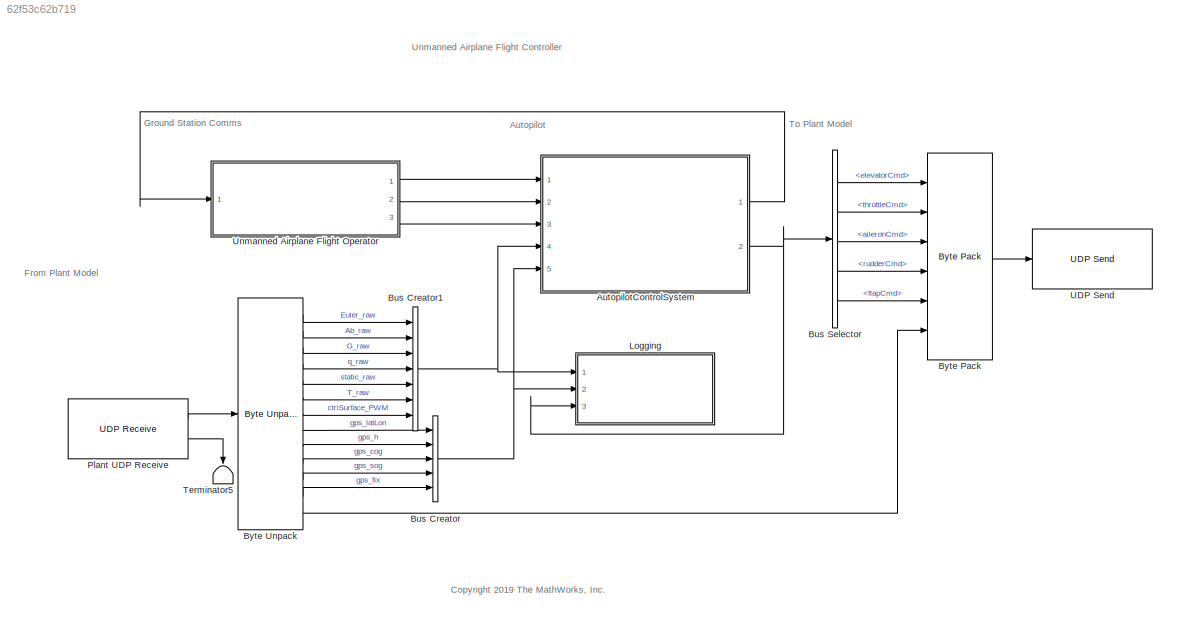
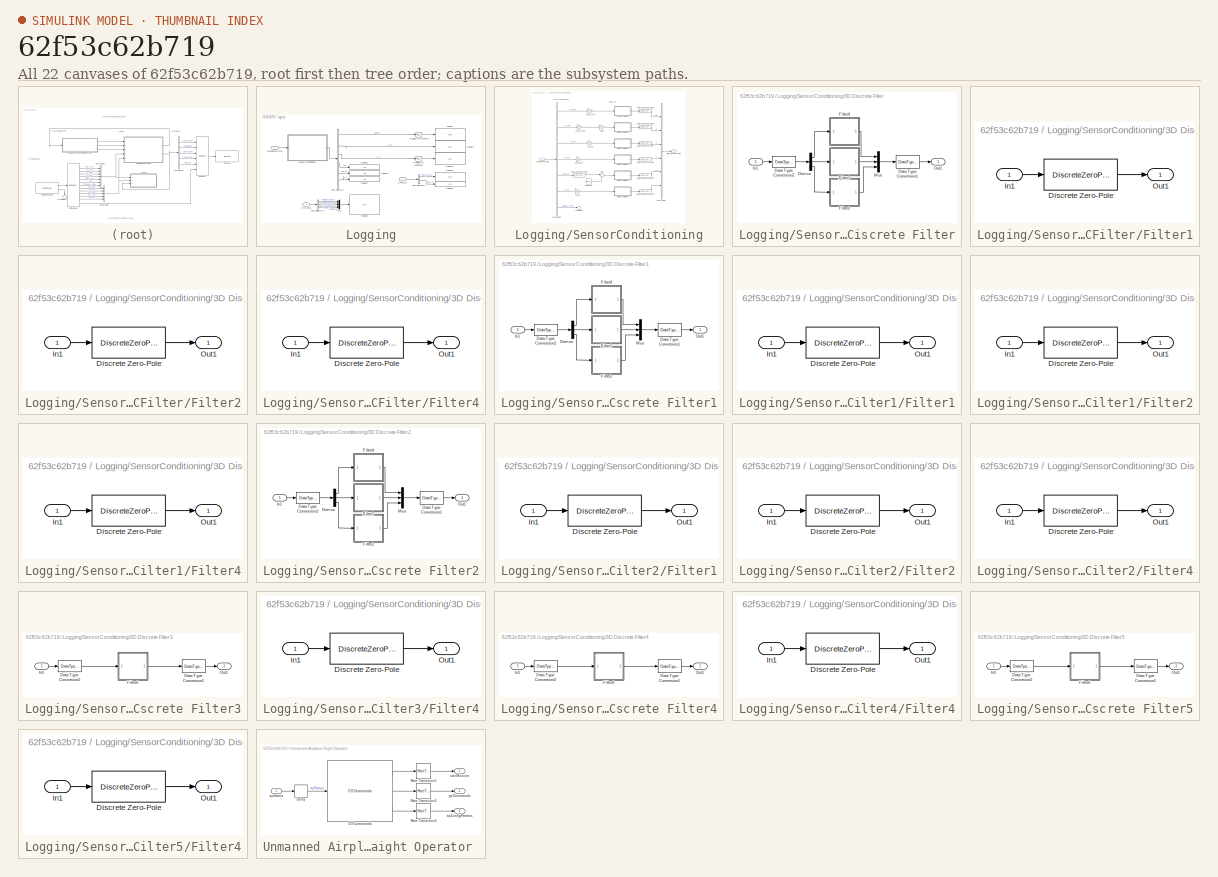
[diagram: thumbnail index - all 22 canvases of the model, root first then tree order]
MODEL slx_62f53c62b719
KIND model
CONFIG AbsTol = auto
CONFIG EnableMultiTasking = on
CONFIG FixedStep = auto
CONFIG MaxStep = auto
CONFIG MinStep = auto
CONFIG RelTol = 1e-3
CONFIG SampleTimeConstraint = Unconstrained
CONFIG Solver = ode5
CONFIG SolverName = ode5
CONFIG StartTime = 0.0
CONFIG StopTime = inf
BLOCK [ModelReference] AutopilotControlSystem
  ModelNameDialog = AutopilotControlSystem
  ModelReferenceVersion = 1.363
  Ports = [5, 2]
BLOCK [BusCreator] Bus Creator
  DisplayOption = bar
  InheritFromInputs = on
  Inputs = 5
  OutDataTypeStr = Bus: gpsReading
  Ports = [5, 1]
BLOCK [BusCreator] Bus Creator1
  DisplayOption = bar
  InheritFromInputs = on
  Inputs = 7
  OutDataTypeStr = Bus: rawSensorDataBus
  Ports = [7, 1]
BLOCK [BusSelector] Bus Selector
  OutputAsBus = off
  OutputSignals = elevatorCmd,throttleCmd,aileronCmd,rudderCmd,flapCmd
  Ports = [1, 5]
BLOCK [Reference] Byte Pack  REF=etargetslib/Byte Pack
  Ports = [6, 1]
  SourceBlock = etargetslib/Byte Pack
  SourceProductBaseCode = ME
  SourceProductName = MATLAB Coder
  SourceType = Byte pack
BLOCK [Reference] Byte Unpack  REF=etargetslib/Byte Unpack
  Ports = [1, 13]
  SourceBlock = etargetslib/Byte Unpack
  SourceProductBaseCode = ME
  SourceProductName = MATLAB Coder
  SourceType = Byte Unpack
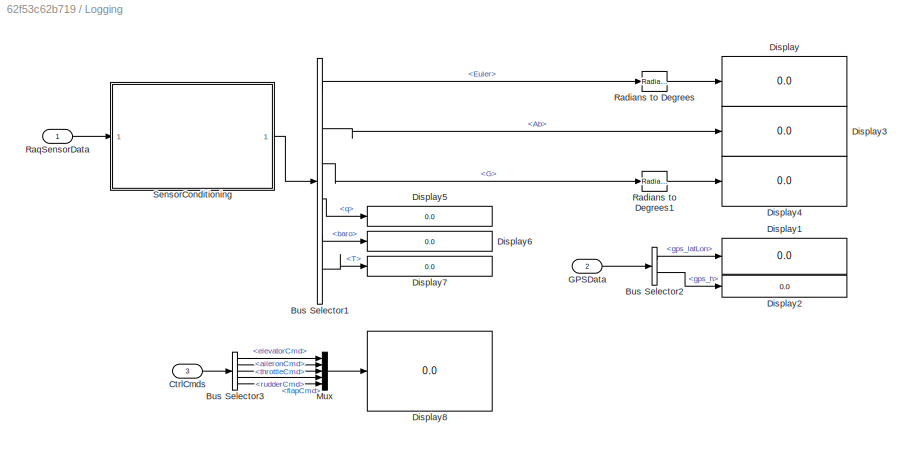
BLOCK [SubSystem] Logging
  Ports = [3]
  RequestExecContextInheritance = off
BLOCK [BusSelector] Logging/Bus Selector1
  OutputAsBus = off
  OutputSignals = Euler,Ab,G,q,baro,T
  Ports = [1, 6]
BLOCK [BusSelector] Logging/Bus Selector2
  OutputAsBus = off
  OutputSignals = gps_latLon,gps_h
  Ports = [1, 2]
BLOCK [BusSelector] Logging/Bus Selector3
  OutputAsBus = off
  OutputSignals = elevatorCmd,throttleCmd,aileronCmd,rudderCmd,flapCmd
  Ports = [1, 5]
BLOCK [Inport] Logging/CtrlCmds
  IconDisplay = Port number
  Port = 3
BLOCK [Display] Logging/Display
  Decimation = 1
  Format = long
  Ports = [1]
BLOCK [Display] Logging/Display1
  Decimation = 1
  Format = long
  Ports = [1]
BLOCK [Display] Logging/Display2
  Decimation = 1
  Format = long
  Ports = [1]
BLOCK [Display] Logging/Display3
  Decimation = 1
  Format = long
  Ports = [1]
BLOCK [Display] Logging/Display4
  Decimation = 1
  Format = long
  Ports = [1]
BLOCK [Display] Logging/Display5
  Decimation = 1
  Format = long
  Ports = [1]
BLOCK [Display] Logging/Display6
  Decimation = 1
  Format = long
  Ports = [1]
BLOCK [Display] Logging/Display7
  Decimation = 1
  Format = long
  Ports = [1]
BLOCK [Display] Logging/Display8
  Decimation = 1
  Format = long
  Ports = [1]
BLOCK [Inport] Logging/GPSData
  IconDisplay = Port number
  Port = 2
BLOCK [Mux] Logging/Mux
  DisplayOption = bar
  Inputs = 5
  Ports = [5, 1]
BLOCK [Reference] Logging/Radians to Degrees  REF=simulink_extras/Transformations/Radians
to Degrees
  Ports = [1, 1]
  SourceBlock = simulink_extras/Transformations/Radians\nto Degrees
  SourceProductBaseCode = SL
  SourceProductName = Simulink
  SourceType = RadiansToDegrees
BLOCK [Reference] Logging/Radians to Degrees1  REF=simulink_extras/Transformations/Radians
to Degrees
  Ports = [1, 1]
  SourceBlock = simulink_extras/Transformations/Radians\nto Degrees
  SourceProductBaseCode = SL
  SourceProductName = Simulink
  SourceType = RadiansToDegrees
BLOCK [Inport] Logging/RaqSensorData
  IconDisplay = Port number
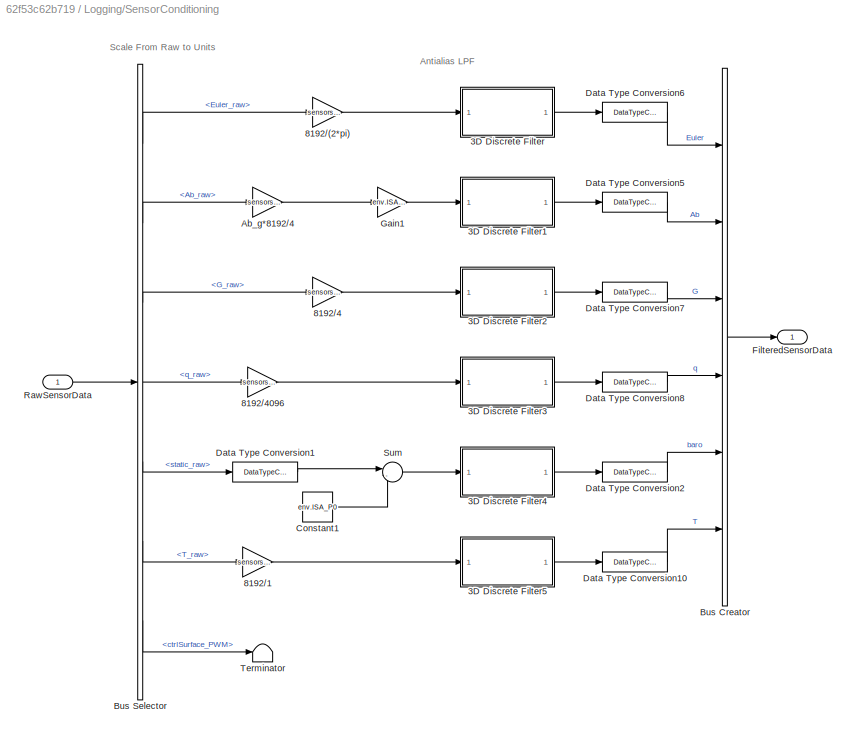
BLOCK [SubSystem] Logging/SensorConditioning
  Ports = [1, 1]
  RequestExecContextInheritance = off
  TreatAsAtomicUnit = on
BLOCK [SubSystem] Logging/SensorConditioning/3D Discrete Filter
  AttributesFormatString = Fc = 40
  Ports = [1, 1]
  RTWFcnName = TustinFilter3D
  RTWFcnNameOpts = User specified
  RTWFileNameOpts = Use function name
  RTWSystemCode = Reusable function
  RequestExecContextInheritance = off
BLOCK [DataTypeConversion] Logging/SensorConditioning/3D Discrete Filter/Data Type Conversion1
  OutDataTypeStr = single
  RndMeth = Floor
  SaturateOnIntegerOverflow = off
BLOCK [DataTypeConversion] Logging/SensorConditioning/3D Discrete Filter/Data Type Conversion2
  OutDataTypeStr = double
  RndMeth = Floor
  SaturateOnIntegerOverflow = off
BLOCK [Demux] Logging/SensorConditioning/3D Discrete Filter/Demux
  DisplayOption = bar
  Outputs = 3
  Ports = [1, 3]
BLOCK [SubSystem] Logging/SensorConditioning/3D Discrete Filter/Filter1
  Ports = [1, 1]
  RequestExecContextInheritance = off
BLOCK [DiscreteZeroPole] Logging/SensorConditioning/3D Discrete Filter/Filter1/Discrete Zero-Pole
  Gain = g_d
  Poles = p_d
  SampleTime = -1
  Zeros = z_d
BLOCK [Inport] Logging/SensorConditioning/3D Discrete Filter/Filter1/In1
  IconDisplay = Port number
BLOCK [Outport] Logging/SensorConditioning/3D Discrete Filter/Filter1/Out1
  IconDisplay = Port number
BLOCK [SubSystem] Logging/SensorConditioning/3D Discrete Filter/Filter2
  Ports = [1, 1]
  RequestExecContextInheritance = off
BLOCK [DiscreteZeroPole] Logging/SensorConditioning/3D Discrete Filter/Filter2/Discrete Zero-Pole
  Gain = g_d
  Poles = p_d
  SampleTime = -1
  Zeros = z_d
BLOCK [Inport] Logging/SensorConditioning/3D Discrete Filter/Filter2/In1
  IconDisplay = Port number
BLOCK [Outport] Logging/SensorConditioning/3D Discrete Filter/Filter2/Out1
  IconDisplay = Port number
BLOCK [SubSystem] Logging/SensorConditioning/3D Discrete Filter/Filter4
  Ports = [1, 1]
  RequestExecContextInheritance = off
BLOCK [DiscreteZeroPole] Logging/SensorConditioning/3D Discrete Filter/Filter4/Discrete Zero-Pole
  Gain = g_d
  Poles = p_d
  SampleTime = -1
  Zeros = z_d
BLOCK [Inport] Logging/SensorConditioning/3D Discrete Filter/Filter4/In1
  IconDisplay = Port number
BLOCK [Outport] Logging/SensorConditioning/3D Discrete Filter/Filter4/Out1
  IconDisplay = Port number
BLOCK [Inport] Logging/SensorConditioning/3D Discrete Filter/In1
  IconDisplay = Port number
BLOCK [Mux] Logging/SensorConditioning/3D Discrete Filter/Mux
  DisplayOption = bar
  Inputs = 3
  Ports = [3, 1]
BLOCK [Outport] Logging/SensorConditioning/3D Discrete Filter/Out1
  IconDisplay = Port number
BLOCK [SubSystem] Logging/SensorConditioning/3D Discrete Filter1
  AttributesFormatString = Fc = 40
  Ports = [1, 1]
  RTWFcnName = TustinFilter3D
  RTWFcnNameOpts = User specified
  RTWFileNameOpts = Use function name
  RTWSystemCode = Reusable function
  RequestExecContextInheritance = off
BLOCK [DataTypeConversion] Logging/SensorConditioning/3D Discrete Filter1/Data Type Conversion1
  OutDataTypeStr = single
  RndMeth = Floor
  SaturateOnIntegerOverflow = off
BLOCK [DataTypeConversion] Logging/SensorConditioning/3D Discrete Filter1/Data Type Conversion2
  OutDataTypeStr = double
  RndMeth = Floor
  SaturateOnIntegerOverflow = off
BLOCK [Demux] Logging/SensorConditioning/3D Discrete Filter1/Demux
  DisplayOption = bar
  Outputs = 3
  Ports = [1, 3]
BLOCK [SubSystem] Logging/SensorConditioning/3D Discrete Filter1/Filter1
  Ports = [1, 1]
  RequestExecContextInheritance = off
BLOCK [DiscreteZeroPole] Logging/SensorConditioning/3D Discrete Filter1/Filter1/Discrete Zero-Pole
  Gain = g_d
  Poles = p_d
  SampleTime = -1
  Zeros = z_d
BLOCK [Inport] Logging/SensorConditioning/3D Discrete Filter1/Filter1/In1
  IconDisplay = Port number
BLOCK [Outport] Logging/SensorConditioning/3D Discrete Filter1/Filter1/Out1
  IconDisplay = Port number
BLOCK [SubSystem] Logging/SensorConditioning/3D Discrete Filter1/Filter2
  Ports = [1, 1]
  RequestExecContextInheritance = off
BLOCK [DiscreteZeroPole] Logging/SensorConditioning/3D Discrete Filter1/Filter2/Discrete Zero-Pole
  Gain = g_d
  Poles = p_d
  SampleTime = -1
  Zeros = z_d
BLOCK [Inport] Logging/SensorConditioning/3D Discrete Filter1/Filter2/In1
  IconDisplay = Port number
BLOCK [Outport] Logging/SensorConditioning/3D Discrete Filter1/Filter2/Out1
  IconDisplay = Port number
BLOCK [SubSystem] Logging/SensorConditioning/3D Discrete Filter1/Filter4
  Ports = [1, 1]
  RequestExecContextInheritance = off
BLOCK [DiscreteZeroPole] Logging/SensorConditioning/3D Discrete Filter1/Filter4/Discrete Zero-Pole
  Gain = g_d
  Poles = p_d
  SampleTime = -1
  Zeros = z_d
BLOCK [Inport] Logging/SensorConditioning/3D Discrete Filter1/Filter4/In1
  IconDisplay = Port number
BLOCK [Outport] Logging/SensorConditioning/3D Discrete Filter1/Filter4/Out1
  IconDisplay = Port number
BLOCK [Inport] Logging/SensorConditioning/3D Discrete Filter1/In1
  IconDisplay = Port number
BLOCK [Mux] Logging/SensorConditioning/3D Discrete Filter1/Mux
  DisplayOption = bar
  Inputs = 3
  Ports = [3, 1]
BLOCK [Outport] Logging/SensorConditioning/3D Discrete Filter1/Out1
  IconDisplay = Port number
BLOCK [SubSystem] Logging/SensorConditioning/3D Discrete Filter2
  AttributesFormatString = Fc = 40
  Ports = [1, 1]
  RTWFcnName = TustinFilter3D
  RTWFcnNameOpts = User specified
  RTWFileNameOpts = Use function name
  RTWSystemCode = Reusable function
  RequestExecContextInheritance = off
BLOCK [DataTypeConversion] Logging/SensorConditioning/3D Discrete Filter2/Data Type Conversion1
  OutDataTypeStr = single
  RndMeth = Floor
  SaturateOnIntegerOverflow = off
BLOCK [DataTypeConversion] Logging/SensorConditioning/3D Discrete Filter2/Data Type Conversion2
  OutDataTypeStr = double
  RndMeth = Floor
  SaturateOnIntegerOverflow = off
BLOCK [Demux] Logging/SensorConditioning/3D Discrete Filter2/Demux
  DisplayOption = bar
  Outputs = 3
  Ports = [1, 3]
BLOCK [SubSystem] Logging/SensorConditioning/3D Discrete Filter2/Filter1
  Ports = [1, 1]
  RequestExecContextInheritance = off
BLOCK [DiscreteZeroPole] Logging/SensorConditioning/3D Discrete Filter2/Filter1/Discrete Zero-Pole
  Gain = g_d
  Poles = p_d
  SampleTime = -1
  Zeros = z_d
BLOCK [Inport] Logging/SensorConditioning/3D Discrete Filter2/Filter1/In1
  IconDisplay = Port number
BLOCK [Outport] Logging/SensorConditioning/3D Discrete Filter2/Filter1/Out1
  IconDisplay = Port number
BLOCK [SubSystem] Logging/SensorConditioning/3D Discrete Filter2/Filter2
  Ports = [1, 1]
  RequestExecContextInheritance = off
BLOCK [DiscreteZeroPole] Logging/SensorConditioning/3D Discrete Filter2/Filter2/Discrete Zero-Pole
  Gain = g_d
  Poles = p_d
  SampleTime = -1
  Zeros = z_d
BLOCK [Inport] Logging/SensorConditioning/3D Discrete Filter2/Filter2/In1
  IconDisplay = Port number
BLOCK [Outport] Logging/SensorConditioning/3D Discrete Filter2/Filter2/Out1
  IconDisplay = Port number
BLOCK [SubSystem] Logging/SensorConditioning/3D Discrete Filter2/Filter4
  Ports = [1, 1]
  RequestExecContextInheritance = off
BLOCK [DiscreteZeroPole] Logging/SensorConditioning/3D Discrete Filter2/Filter4/Discrete Zero-Pole
  Gain = g_d
  Poles = p_d
  SampleTime = -1
  Zeros = z_d
BLOCK [Inport] Logging/SensorConditioning/3D Discrete Filter2/Filter4/In1
  IconDisplay = Port number
BLOCK [Outport] Logging/SensorConditioning/3D Discrete Filter2/Filter4/Out1
  IconDisplay = Port number
BLOCK [Inport] Logging/SensorConditioning/3D Discrete Filter2/In1
  IconDisplay = Port number
BLOCK [Mux] Logging/SensorConditioning/3D Discrete Filter2/Mux
  DisplayOption = bar
  Inputs = 3
  Ports = [3, 1]
BLOCK [Outport] Logging/SensorConditioning/3D Discrete Filter2/Out1
  IconDisplay = Port number
BLOCK [SubSystem] Logging/SensorConditioning/3D Discrete Filter3
  AttributesFormatString = Fc = 40
  Ports = [1, 1]
  RTWFcnName = TustinFilter3D
  RTWFcnNameOpts = User specified
  RTWFileNameOpts = Use function name
  RTWSystemCode = Reusable function
  RequestExecContextInheritance = off
BLOCK [DataTypeConversion] Logging/SensorConditioning/3D Discrete Filter3/Data Type Conversion1
  OutDataTypeStr = single
  RndMeth = Floor
  SaturateOnIntegerOverflow = off
BLOCK [DataTypeConversion] Logging/SensorConditioning/3D Discrete Filter3/Data Type Conversion2
  OutDataTypeStr = double
  RndMeth = Floor
  SaturateOnIntegerOverflow = off
BLOCK [SubSystem] Logging/SensorConditioning/3D Discrete Filter3/Filter4
  Ports = [1, 1]
  RequestExecContextInheritance = off
BLOCK [DiscreteZeroPole] Logging/SensorConditioning/3D Discrete Filter3/Filter4/Discrete Zero-Pole
  Gain = g_d
  Poles = p_d
  SampleTime = -1
  Zeros = z_d
BLOCK [Inport] Logging/SensorConditioning/3D Discrete Filter3/Filter4/In1
  IconDisplay = Port number
BLOCK [Outport] Logging/SensorConditioning/3D Discrete Filter3/Filter4/Out1
  IconDisplay = Port number
BLOCK [Inport] Logging/SensorConditioning/3D Discrete Filter3/In1
  IconDisplay = Port number
BLOCK [Outport] Logging/SensorConditioning/3D Discrete Filter3/Out1
  IconDisplay = Port number
BLOCK [SubSystem] Logging/SensorConditioning/3D Discrete Filter4
  AttributesFormatString = Fc = 40
  Ports = [1, 1]
  RTWFcnName = TustinFilter3D
  RTWFcnNameOpts = User specified
  RTWFileNameOpts = Use function name
  RTWSystemCode = Reusable function
  RequestExecContextInheritance = off
BLOCK [DataTypeConversion] Logging/SensorConditioning/3D Discrete Filter4/Data Type Conversion1
  OutDataTypeStr = single
  RndMeth = Floor
  SaturateOnIntegerOverflow = off
BLOCK [DataTypeConversion] Logging/SensorConditioning/3D Discrete Filter4/Data Type Conversion2
  OutDataTypeStr = double
  RndMeth = Floor
  SaturateOnIntegerOverflow = off
BLOCK [SubSystem] Logging/SensorConditioning/3D Discrete Filter4/Filter4
  Ports = [1, 1]
  RequestExecContextInheritance = off
BLOCK [DiscreteZeroPole] Logging/SensorConditioning/3D Discrete Filter4/Filter4/Discrete Zero-Pole
  Gain = g_d
  Poles = p_d
  SampleTime = -1
  Zeros = z_d
BLOCK [Inport] Logging/SensorConditioning/3D Discrete Filter4/Filter4/In1
  IconDisplay = Port number
BLOCK [Outport] Logging/SensorConditioning/3D Discrete Filter4/Filter4/Out1
  IconDisplay = Port number
BLOCK [Inport] Logging/SensorConditioning/3D Discrete Filter4/In1
  IconDisplay = Port number
BLOCK [Outport] Logging/SensorConditioning/3D Discrete Filter4/Out1
  IconDisplay = Port number
BLOCK [SubSystem] Logging/SensorConditioning/3D Discrete Filter5
  AttributesFormatString = Fc = 40
  Ports = [1, 1]
  RTWFcnName = TustinFilter3D
  RTWFcnNameOpts = User specified
  RTWFileNameOpts = Use function name
  RTWSystemCode = Reusable function
  RequestExecContextInheritance = off
BLOCK [DataTypeConversion] Logging/SensorConditioning/3D Discrete Filter5/Data Type Conversion1
  OutDataTypeStr = single
  RndMeth = Floor
  SaturateOnIntegerOverflow = off
BLOCK [DataTypeConversion] Logging/SensorConditioning/3D Discrete Filter5/Data Type Conversion2
  OutDataTypeStr = double
  RndMeth = Floor
  SaturateOnIntegerOverflow = off
BLOCK [SubSystem] Logging/SensorConditioning/3D Discrete Filter5/Filter4
  Ports = [1, 1]
  RequestExecContextInheritance = off
BLOCK [DiscreteZeroPole] Logging/SensorConditioning/3D Discrete Filter5/Filter4/Discrete Zero-Pole
  Gain = g_d
  Poles = p_d
  SampleTime = -1
  Zeros = z_d
BLOCK [Inport] Logging/SensorConditioning/3D Discrete Filter5/Filter4/In1
  IconDisplay = Port number
BLOCK [Outport] Logging/SensorConditioning/3D Discrete Filter5/Filter4/Out1
  IconDisplay = Port number
BLOCK [Inport] Logging/SensorConditioning/3D Discrete Filter5/In1
  IconDisplay = Port number
BLOCK [Outport] Logging/SensorConditioning/3D Discrete Filter5/Out1
  IconDisplay = Port number
BLOCK [Gain] Logging/SensorConditioning/8192//(2*pi)
  AttributesFormatString = %<Gain>
  Gain = sensors.max_euler/sensors.bit_scale
  OutDataTypeStr = single
  ParamDataTypeStr = Inherit: Inherit via internal rule
  SaturateOnIntegerOverflow = off
BLOCK [Gain] Logging/SensorConditioning/8192//1
  AttributesFormatString = %<Gain>
  Gain = sensors.max_temp/sensors.bit_scale
  OutDataTypeStr = single
  ParamDataTypeStr = Inherit: Inherit via internal rule
  SaturateOnIntegerOverflow = off
BLOCK [Gain] Logging/SensorConditioning/8192//4
  AttributesFormatString = %<Gain>
  Gain = sensors.max_gyro/sensors.bit_scale
  OutDataTypeStr = single
  ParamDataTypeStr = Inherit: Inherit via internal rule
  SaturateOnIntegerOverflow = off
BLOCK [Gain] Logging/SensorConditioning/8192//4096
  AttributesFormatString = %<Gain>
  Gain = sensors.max_dyn/sensors.bit_scale
  OutDataTypeStr = single
  ParamDataTypeStr = Inherit: Inherit via internal rule
  SaturateOnIntegerOverflow = off
BLOCK [Gain] Logging/SensorConditioning/Ab_g*8192//4
  AttributesFormatString = %<Gain>
  Gain = sensors.max_accel/sensors.bit_scale
  OutDataTypeStr = single
  ParamDataTypeStr = Inherit: Inherit via internal rule
  SaturateOnIntegerOverflow = off
BLOCK [BusCreator] Logging/SensorConditioning/Bus Creator
  DisplayOption = bar
  InheritFromInputs = on
  Inputs = 6
  Ports = [6, 1]
BLOCK [BusSelector] Logging/SensorConditioning/Bus Selector
  OutputAsBus = off
  OutputSignals = Euler_raw,Ab_raw,G_raw,q_raw,static_raw,T_raw,ctrlSurface_PWM
  Ports = [1, 7]
BLOCK [Constant] Logging/SensorConditioning/Constant1
  AttributesFormatString = %<Value>
  Value = env.ISA_P0
BLOCK [DataTypeConversion] Logging/SensorConditioning/Data Type Conversion1
  OutDataTypeStr = single
  RndMeth = Floor
  SaturateOnIntegerOverflow = off
BLOCK [DataTypeConversion] Logging/SensorConditioning/Data Type Conversion10
  OutDataTypeStr = single
  RndMeth = Floor
  SaturateOnIntegerOverflow = off
BLOCK [DataTypeConversion] Logging/SensorConditioning/Data Type Conversion2
  OutDataTypeStr = single
  RndMeth = Floor
  SaturateOnIntegerOverflow = off
BLOCK [DataTypeConversion] Logging/SensorConditioning/Data Type Conversion5
  OutDataTypeStr = single
  RndMeth = Floor
  SaturateOnIntegerOverflow = off
BLOCK [DataTypeConversion] Logging/SensorConditioning/Data Type Conversion6
  OutDataTypeStr = single
  RndMeth = Floor
  SaturateOnIntegerOverflow = off
BLOCK [DataTypeConversion] Logging/SensorConditioning/Data Type Conversion7
  OutDataTypeStr = single
  RndMeth = Floor
  SaturateOnIntegerOverflow = off
BLOCK [DataTypeConversion] Logging/SensorConditioning/Data Type Conversion8
  OutDataTypeStr = single
  RndMeth = Floor
  SaturateOnIntegerOverflow = off
BLOCK [Outport] Logging/SensorConditioning/FilteredSensorData
  IconDisplay = Port number
BLOCK [Gain] Logging/SensorConditioning/Gain1
  AttributesFormatString = %<Gain>
  Gain = env.ISA_g
  OutDataTypeStr = single
  ParamDataTypeStr = Inherit: Inherit via internal rule
  SaturateOnIntegerOverflow = off
BLOCK [Inport] Logging/SensorConditioning/RawSensorData
  IconDisplay = Port number
BLOCK [Sum] Logging/SensorConditioning/Sum
  IconShape = round
  InputSameDT = off
  Inputs = |-+
  OutDataTypeStr = Inherit: Inherit via internal rule
  Ports = [2, 1]
  SaturateOnIntegerOverflow = off
BLOCK [Terminator] Logging/SensorConditioning/Terminator
BLOCK [Reference] Plant UDP Receive  REF=embdlinuxlib/UDP Receive
  Ports = [0, 2]
  SourceBlock = embdlinuxlib/UDP Receive
  SourceProductBaseCode = SC_BEAGLEBONE_BLUE
  SourceProductName = Simulink Coder Support Package for BeagleBone Blue Hardware
  SourceType = UDP Receive
BLOCK [Terminator] Terminator5
BLOCK [Reference] UDP Send  REF=embdlinuxlib/UDP Send
  Ports = [1]
  SourceBlock = embdlinuxlib/UDP Send
  SourceProductBaseCode = SC_BEAGLEBONE_BLUE
  SourceProductName = Simulink Coder Support Package for BeagleBone Blue Hardware
  SourceType = UDP Send
BLOCK [SubSystem] Unmanned Airplane Flight Operator 
  Ports = [1, 3]
  RequestExecContextInheritance = off
BLOCK [Delay] Unmanned Airplane Flight Operator /Delay
  DelayLength = 1
  InputPortMap = u0
  Ports = [1, 1]
BLOCK [Reference] Unmanned Airplane Flight Operator /GS Commands   REF=mbdriLib/Utilities/GS Commands 
  Ports = [1, 3]
  SourceBlock = mbdriLib/Utilities/GS Commands
  SourceProductBaseCode = RO
  SourceProductName = Robotics System Toolbox
  SourceType = SubSystem
BLOCK [RateTransition] Unmanned Airplane Flight Operator /Rate Transition2
  OutPortSampleTime = ap.apSampleTime
BLOCK [RateTransition] Unmanned Airplane Flight Operator /Rate Transition3
  OutPortSampleTime = ap.apSampleTime
BLOCK [RateTransition] Unmanned Airplane Flight Operator /Rate Transition4
  OutPortSampleTime = ap.apSampleTime
BLOCK [Outport] Unmanned Airplane Flight Operator /apConfigParams
  IconDisplay = Port number
  OutDataTypeStr = Bus: apConfigParamsBus
  Port = 3
BLOCK [Inport] Unmanned Airplane Flight Operator /apStatus
  IconDisplay = Port number
  OutDataTypeStr = Bus: apStatusBus
BLOCK [Outport] Unmanned Airplane Flight Operator /gsCommands
  IconDisplay = Port number
  OutDataTypeStr = Bus: gsCommandsBus
  Port = 2
BLOCK [Outport] Unmanned Airplane Flight Operator /uavMission
  IconDisplay = Port number
  OutDataTypeStr = Bus: waypoint
ANNOTATION (root): Unmanned Airplane Flight Controller
ANNOTATION (root): Autopilot
ANNOTATION (root): <copyright redacted>
ANNOTATION (root): From Plant Model
ANNOTATION (root): Ground Station Comms
ANNOTATION (root): To Plant Model
ANNOTATION Logging/SensorConditioning: Antialias LPF
ANNOTATION Logging/SensorConditioning: Scale From Raw to Units
LINE AutopilotControlSystem:1 -> Unmanned Airplane Flight Operator :1
NET AutopilotControlSystem:2 -> Bus Selector:1, Logging:3
NET Bus Creator1:1 -> AutopilotControlSystem:4, Logging:1
NET Bus Creator:1 -> AutopilotControlSystem:5, Logging:2
LINE Bus Selector:1 -> Byte Pack:1
LINE Bus Selector:2 -> Byte Pack:2
LINE Bus Selector:3 -> Byte Pack:3
LINE Bus Selector:4 -> Byte Pack:4
LINE Bus Selector:5 -> Byte Pack:5
LINE Byte Pack:1 -> UDP Send:1
LINE Byte Unpack:1 -> Bus Creator1:1
LINE Byte Unpack:10 -> Bus Creator:3
LINE Byte Unpack:11 -> Bus Creator:4
LINE Byte Unpack:12 -> Bus Creator:5
LINE Byte Unpack:13 -> Byte Pack:6
LINE Byte Unpack:2 -> Bus Creator1:2
LINE Byte Unpack:3 -> Bus Creator1:3
LINE Byte Unpack:4 -> Bus Creator1:4
LINE Byte Unpack:5 -> Bus Creator1:5
LINE Byte Unpack:6 -> Bus Creator1:6
LINE Byte Unpack:7 -> Bus Creator1:7
LINE Byte Unpack:8 -> Bus Creator:1
LINE Byte Unpack:9 -> Bus Creator:2
LINE Logging/Bus Selector1:1 -> Logging/Radians to Degrees:1
LINE Logging/Bus Selector1:2 -> Logging/Display3:1
LINE Logging/Bus Selector1:3 -> Logging/Radians to Degrees1:1
LINE Logging/Bus Selector1:4 -> Logging/Display5:1
LINE Logging/Bus Selector1:5 -> Logging/Display6:1
LINE Logging/Bus Selector1:6 -> Logging/Display7:1
LINE Logging/Bus Selector2:1 -> Logging/Display1:1
LINE Logging/Bus Selector2:2 -> Logging/Display2:1
LINE Logging/Bus Selector3:1 -> Logging/Mux:1
LINE Logging/Bus Selector3:2 -> Logging/Mux:2
LINE Logging/Bus Selector3:3 -> Logging/Mux:3
LINE Logging/Bus Selector3:4 -> Logging/Mux:4
LINE Logging/Bus Selector3:5 -> Logging/Mux:5
LINE Logging/CtrlCmds:1 -> Logging/Bus Selector3:1
LINE Logging/GPSData:1 -> Logging/Bus Selector2:1
LINE Logging/Mux:1 -> Logging/Display8:1
LINE Logging/Radians to Degrees1:1 -> Logging/Display4:1
LINE Logging/Radians to Degrees:1 -> Logging/Display:1
LINE Logging/RaqSensorData:1 -> Logging/SensorConditioning:1
LINE Logging/SensorConditioning/3D Discrete Filter/Data Type Conversion1:1 -> Logging/SensorConditioning/3D Discrete Filter/Out1:1
LINE Logging/SensorConditioning/3D Discrete Filter/Data Type Conversion2:1 -> Logging/SensorConditioning/3D Discrete Filter/Demux:1
LINE Logging/SensorConditioning/3D Discrete Filter/Demux:1 -> Logging/SensorConditioning/3D Discrete Filter/Filter4:1
LINE Logging/SensorConditioning/3D Discrete Filter/Demux:2 -> Logging/SensorConditioning/3D Discrete Filter/Filter1:1
LINE Logging/SensorConditioning/3D Discrete Filter/Demux:3 -> Logging/SensorConditioning/3D Discrete Filter/Filter2:1
LINE Logging/SensorConditioning/3D Discrete Filter/Filter1:1 -> Logging/SensorConditioning/3D Discrete Filter/Mux:2
LINE Logging/SensorConditioning/3D Discrete Filter/Filter2:1 -> Logging/SensorConditioning/3D Discrete Filter/Mux:3
LINE Logging/SensorConditioning/3D Discrete Filter/Filter4:1 -> Logging/SensorConditioning/3D Discrete Filter/Mux:1
LINE Logging/SensorConditioning/3D Discrete Filter/In1:1 -> Logging/SensorConditioning/3D Discrete Filter/Data Type Conversion2:1
LINE Logging/SensorConditioning/3D Discrete Filter/Mux:1 -> Logging/SensorConditioning/3D Discrete Filter/Data Type Conversion1:1
LINE Logging/SensorConditioning/3D Discrete Filter1/Data Type Conversion1:1 -> Logging/SensorConditioning/3D Discrete Filter1/Out1:1
LINE Logging/SensorConditioning/3D Discrete Filter1/Data Type Conversion2:1 -> Logging/SensorConditioning/3D Discrete Filter1/Demux:1
LINE Logging/SensorConditioning/3D Discrete Filter1/Demux:1 -> Logging/SensorConditioning/3D Discrete Filter1/Filter4:1
LINE Logging/SensorConditioning/3D Discrete Filter1/Demux:2 -> Logging/SensorConditioning/3D Discrete Filter1/Filter1:1
LINE Logging/SensorConditioning/3D Discrete Filter1/Demux:3 -> Logging/SensorConditioning/3D Discrete Filter1/Filter2:1
LINE Logging/SensorConditioning/3D Discrete Filter1/Filter1:1 -> Logging/SensorConditioning/3D Discrete Filter1/Mux:2
LINE Logging/SensorConditioning/3D Discrete Filter1/Filter2:1 -> Logging/SensorConditioning/3D Discrete Filter1/Mux:3
LINE Logging/SensorConditioning/3D Discrete Filter1/Filter4:1 -> Logging/SensorConditioning/3D Discrete Filter1/Mux:1
LINE Logging/SensorConditioning/3D Discrete Filter1/In1:1 -> Logging/SensorConditioning/3D Discrete Filter1/Data Type Conversion2:1
LINE Logging/SensorConditioning/3D Discrete Filter1/Mux:1 -> Logging/SensorConditioning/3D Discrete Filter1/Data Type Conversion1:1
LINE Logging/SensorConditioning/3D Discrete Filter1:1 -> Logging/SensorConditioning/Data Type Conversion5:1
LINE Logging/SensorConditioning/3D Discrete Filter2/Data Type Conversion1:1 -> Logging/SensorConditioning/3D Discrete Filter2/Out1:1
LINE Logging/SensorConditioning/3D Discrete Filter2/Data Type Conversion2:1 -> Logging/SensorConditioning/3D Discrete Filter2/Demux:1
LINE Logging/SensorConditioning/3D Discrete Filter2/Demux:1 -> Logging/SensorConditioning/3D Discrete Filter2/Filter4:1
LINE Logging/SensorConditioning/3D Discrete Filter2/Demux:2 -> Logging/SensorConditioning/3D Discrete Filter2/Filter1:1
LINE Logging/SensorConditioning/3D Discrete Filter2/Demux:3 -> Logging/SensorConditioning/3D Discrete Filter2/Filter2:1
LINE Logging/SensorConditioning/3D Discrete Filter2/Filter1:1 -> Logging/SensorConditioning/3D Discrete Filter2/Mux:2
LINE Logging/SensorConditioning/3D Discrete Filter2/Filter2:1 -> Logging/SensorConditioning/3D Discrete Filter2/Mux:3
LINE Logging/SensorConditioning/3D Discrete Filter2/Filter4:1 -> Logging/SensorConditioning/3D Discrete Filter2/Mux:1
LINE Logging/SensorConditioning/3D Discrete Filter2/In1:1 -> Logging/SensorConditioning/3D Discrete Filter2/Data Type Conversion2:1
LINE Logging/SensorConditioning/3D Discrete Filter2/Mux:1 -> Logging/SensorConditioning/3D Discrete Filter2/Data Type Conversion1:1
LINE Logging/SensorConditioning/3D Discrete Filter2:1 -> Logging/SensorConditioning/Data Type Conversion7:1
LINE Logging/SensorConditioning/3D Discrete Filter3/Data Type Conversion1:1 -> Logging/SensorConditioning/3D Discrete Filter3/Out1:1
LINE Logging/SensorConditioning/3D Discrete Filter3/Data Type Conversion2:1 -> Logging/SensorConditioning/3D Discrete Filter3/Filter4:1
LINE Logging/SensorConditioning/3D Discrete Filter3/Filter4:1 -> Logging/SensorConditioning/3D Discrete Filter3/Data Type Conversion1:1
LINE Logging/SensorConditioning/3D Discrete Filter3/In1:1 -> Logging/SensorConditioning/3D Discrete Filter3/Data Type Conversion2:1
LINE Logging/SensorConditioning/3D Discrete Filter3:1 -> Logging/SensorConditioning/Data Type Conversion8:1
LINE Logging/SensorConditioning/3D Discrete Filter4/Data Type Conversion1:1 -> Logging/SensorConditioning/3D Discrete Filter4/Out1:1
LINE Logging/SensorConditioning/3D Discrete Filter4/Data Type Conversion2:1 -> Logging/SensorConditioning/3D Discrete Filter4/Filter4:1
LINE Logging/SensorConditioning/3D Discrete Filter4/Filter4:1 -> Logging/SensorConditioning/3D Discrete Filter4/Data Type Conversion1:1
LINE Logging/SensorConditioning/3D Discrete Filter4/In1:1 -> Logging/SensorConditioning/3D Discrete Filter4/Data Type Conversion2:1
LINE Logging/SensorConditioning/3D Discrete Filter4:1 -> Logging/SensorConditioning/Data Type Conversion2:1
LINE Logging/SensorConditioning/3D Discrete Filter5/Data Type Conversion1:1 -> Logging/SensorConditioning/3D Discrete Filter5/Out1:1
LINE Logging/SensorConditioning/3D Discrete Filter5/Data Type Conversion2:1 -> Logging/SensorConditioning/3D Discrete Filter5/Filter4:1
LINE Logging/SensorConditioning/3D Discrete Filter5/Filter4:1 -> Logging/SensorConditioning/3D Discrete Filter5/Data Type Conversion1:1
LINE Logging/SensorConditioning/3D Discrete Filter5/In1:1 -> Logging/SensorConditioning/3D Discrete Filter5/Data Type Conversion2:1
LINE Logging/SensorConditioning/3D Discrete Filter5:1 -> Logging/SensorConditioning/Data Type Conversion10:1
LINE Logging/SensorConditioning/3D Discrete Filter:1 -> Logging/SensorConditioning/Data Type Conversion6:1
LINE Logging/SensorConditioning/8192//(2*pi):1 -> Logging/SensorConditioning/3D Discrete Filter:1
LINE Logging/SensorConditioning/8192//1:1 -> Logging/SensorConditioning/3D Discrete Filter5:1
LINE Logging/SensorConditioning/8192//4096:1 -> Logging/SensorConditioning/3D Discrete Filter3:1
LINE Logging/SensorConditioning/8192//4:1 -> Logging/SensorConditioning/3D Discrete Filter2:1
LINE Logging/SensorConditioning/Ab_g*8192//4:1 -> Logging/SensorConditioning/Gain1:1
LINE Logging/SensorConditioning/Bus Creator:1 -> Logging/SensorConditioning/FilteredSensorData:1
LINE Logging/SensorConditioning/Bus Selector:1 -> Logging/SensorConditioning/8192//(2*pi):1
LINE Logging/SensorConditioning/Bus Selector:2 -> Logging/SensorConditioning/Ab_g*8192//4:1
LINE Logging/SensorConditioning/Bus Selector:3 -> Logging/SensorConditioning/8192//4:1
LINE Logging/SensorConditioning/Bus Selector:4 -> Logging/SensorConditioning/8192//4096:1
LINE Logging/SensorConditioning/Bus Selector:5 -> Logging/SensorConditioning/Data Type Conversion1:1
LINE Logging/SensorConditioning/Bus Selector:6 -> Logging/SensorConditioning/8192//1:1
LINE Logging/SensorConditioning/Bus Selector:7 -> Logging/SensorConditioning/Terminator:1
LINE Logging/SensorConditioning/Constant1:1 -> Logging/SensorConditioning/Sum:2
LINE Logging/SensorConditioning/Data Type Conversion10:1 -> Logging/SensorConditioning/Bus Creator:6
LINE Logging/SensorConditioning/Data Type Conversion1:1 -> Logging/SensorConditioning/Sum:1
LINE Logging/SensorConditioning/Data Type Conversion2:1 -> Logging/SensorConditioning/Bus Creator:5
LINE Logging/SensorConditioning/Data Type Conversion5:1 -> Logging/SensorConditioning/Bus Creator:2
LINE Logging/SensorConditioning/Data Type Conversion6:1 -> Logging/SensorConditioning/Bus Creator:1
LINE Logging/SensorConditioning/Data Type Conversion7:1 -> Logging/SensorConditioning/Bus Creator:3
LINE Logging/SensorConditioning/Data Type Conversion8:1 -> Logging/SensorConditioning/Bus Creator:4
LINE Logging/SensorConditioning/Gain1:1 -> Logging/SensorConditioning/3D Discrete Filter1:1
LINE Logging/SensorConditioning/RawSensorData:1 -> Logging/SensorConditioning/Bus Selector:1
LINE Logging/SensorConditioning/Sum:1 -> Logging/SensorConditioning/3D Discrete Filter4:1
LINE Logging/SensorConditioning:1 -> Logging/Bus Selector1:1
LINE Plant UDP Receive:1 -> Byte Unpack:1
LINE Plant UDP Receive:2 -> Terminator5:1
LINE Unmanned Airplane Flight Operator /Delay:1 -> Unmanned Airplane Flight Operator /GS Commands :1
LINE Unmanned Airplane Flight Operator /GS Commands :1 -> Unmanned Airplane Flight Operator /Rate Transition2:1
LINE Unmanned Airplane Flight Operator /GS Commands :2 -> Unmanned Airplane Flight Operator /Rate Transition3:1
LINE Unmanned Airplane Flight Operator /GS Commands :3 -> Unmanned Airplane Flight Operator /Rate Transition4:1
LINE Unmanned Airplane Flight Operator /Rate Transition2:1 -> Unmanned Airplane Flight Operator /uavMission:1
LINE Unmanned Airplane Flight Operator /Rate Transition3:1 -> Unmanned Airplane Flight Operator /gsCommands:1
LINE Unmanned Airplane Flight Operator /Rate Transition4:1 -> Unmanned Airplane Flight Operator /apConfigParams:1
LINE Unmanned Airplane Flight Operator /apStatus:1 -> Unmanned Airplane Flight Operator /Delay:1
LINE Unmanned Airplane Flight Operator :1 -> AutopilotControlSystem:1
LINE Unmanned Airplane Flight Operator :2 -> AutopilotControlSystem:2
LINE Unmanned Airplane Flight Operator :3 -> AutopilotControlSystem:3
note: NET lines group one-source signal fan-out (src -> all destinations, sorted); 1:1 wires keep LINE
